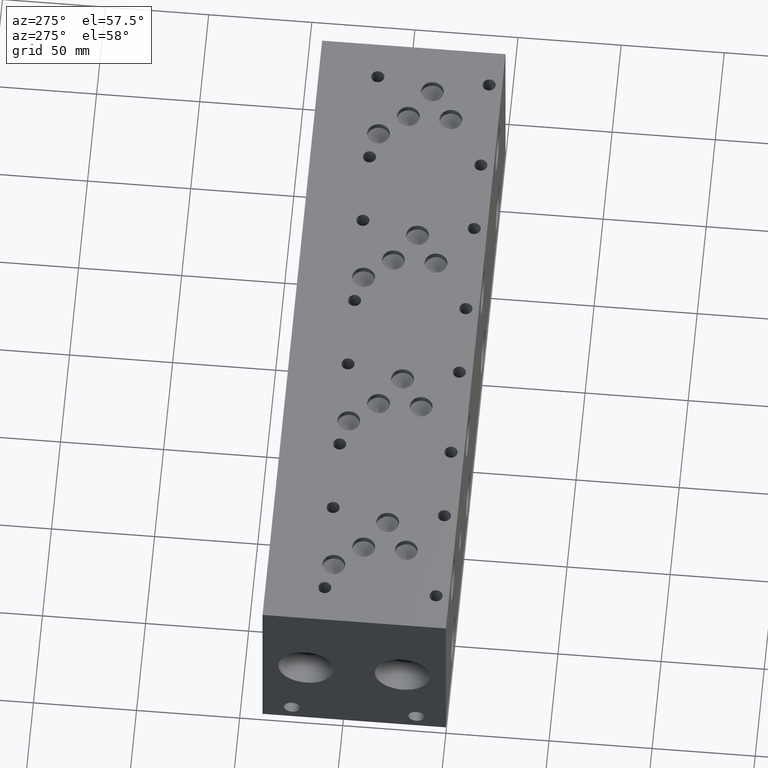
[diagram: clean part render]
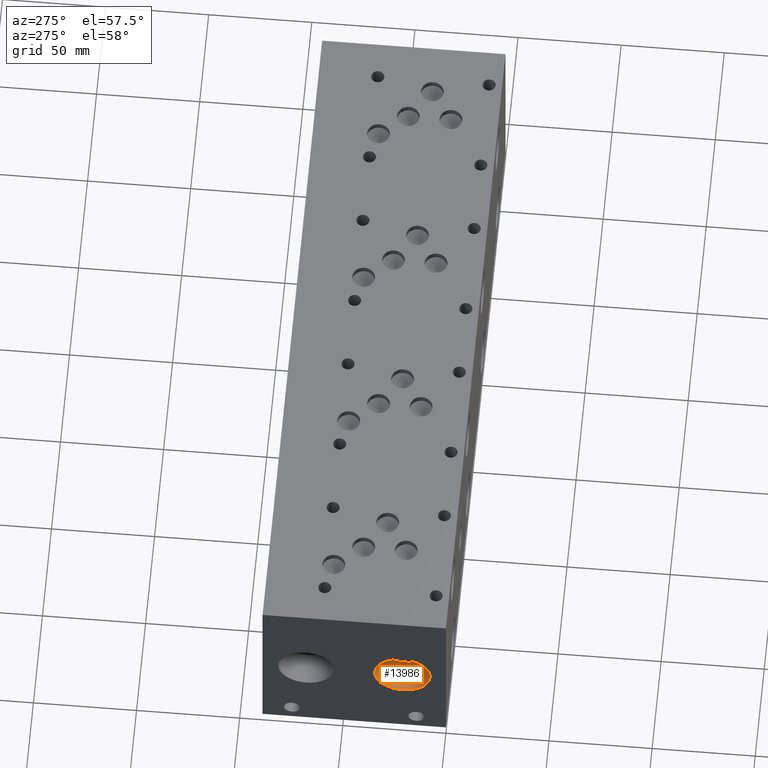
[diagram: same view with one face highlighted and labeled with its STEP entity id]
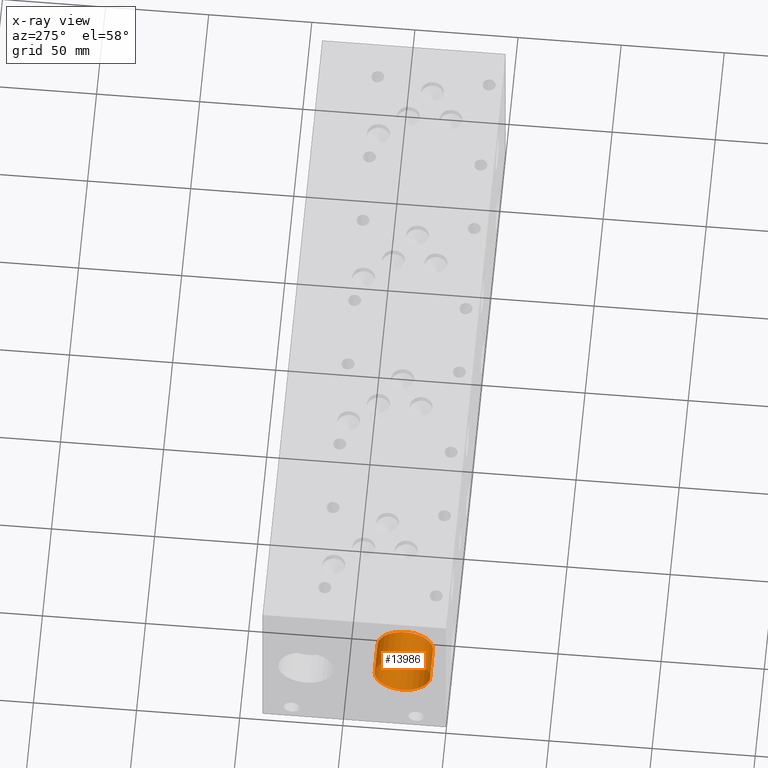
[diagram: x-ray of the same camera — body ghosted, the highlighted face saturated]
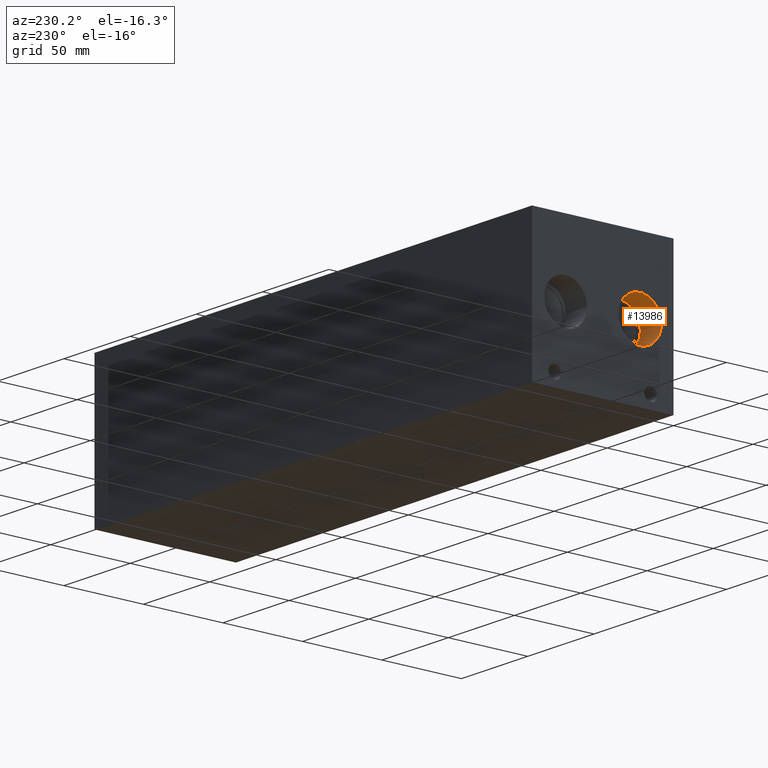
[diagram: same view with one face highlighted and labeled with its STEP entity id]
A machine part, auxiliary view. The second image highlights one B-rep face of the part: STEP entity #13986.
The next image is the same camera in x-ray: the body ghosted, the highlighted face saturated — about 0% of this face is hidden behind the body in this view.
A second angle (auxiliary view) of the same face is appended — the face is thin or edge-on in the first view.
In plain terms, the highlighted cylindrical surface (bore or boss wall) has radius 13.462 mm, axis along (-1, 0, 0).
Its self-contained STEP definition (entity closure, byte-faithful):
#28=CYLINDRICAL_SURFACE('',#14626,13.462);
#347=CIRCLE('',#14498,13.462);
#348=CIRCLE('',#14499,13.462);
#390=CIRCLE('',#14623,13.462);
#391=CIRCLE('',#14624,13.462);
#1686=FACE_OUTER_BOUND('',#2493,.T.);
#2493=EDGE_LOOP('',(#11728,#11729,#11730,#11731,#11732,#11733));
#3874=LINE('',#23524,#5169);
#5169=VECTOR('',#17147,13.462);
#6212=VERTEX_POINT('',#22685);
#6213=VERTEX_POINT('',#22686);
#6367=VERTEX_POINT('',#23517);
#6368=VERTEX_POINT('',#23518);
#7996=EDGE_CURVE('',#6212,#6213,#347,.T.);
#7997=EDGE_CURVE('',#6213,#6212,#348,.T.);
#8235=EDGE_CURVE('',#6367,#6368,#390,.T.);
#8236=EDGE_CURVE('',#6368,#6367,#391,.T.);
#8238=EDGE_CURVE('',#6213,#6368,#3874,.T.);
#11728=ORIENTED_EDGE('',*,*,#7996,.F.);
#11729=ORIENTED_EDGE('',*,*,#7997,.F.);
#11730=ORIENTED_EDGE('',*,*,#8238,.T.);
#11731=ORIENTED_EDGE('',*,*,#8235,.F.);
#11732=ORIENTED_EDGE('',*,*,#8236,.F.);
#11733=ORIENTED_EDGE('',*,*,#8238,.F.);
#13986=ADVANCED_FACE('',(#1686),#28,.F.);
#14498=AXIS2_PLACEMENT_3D('',#22687,#16737,#16738);
#14499=AXIS2_PLACEMENT_3D('',#22688,#16739,#16740);
#14623=AXIS2_PLACEMENT_3D('',#23519,#17139,#17140);
#14624=AXIS2_PLACEMENT_3D('',#23520,#17141,#17142);
#14626=AXIS2_PLACEMENT_3D('',#23523,#17145,#17146);
#16737=DIRECTION('center_axis',(1.,0.,0.));
#16738=DIRECTION('ref_axis',(0.,1.,0.));
#16739=DIRECTION('center_axis',(1.,0.,0.));
#16740=DIRECTION('ref_axis',(0.,1.,0.));
#17139=DIRECTION('center_axis',(-1.,0.,0.));
#17140=DIRECTION('ref_axis',(0.,1.,0.));
#17141=DIRECTION('center_axis',(-1.,0.,0.));
#17142=DIRECTION('ref_axis',(0.,1.,0.));
#17145=DIRECTION('center_axis',(-1.,0.,0.));
#17146=DIRECTION('ref_axis',(0.,1.,0.));
#17147=DIRECTION('',(1.,0.,0.));
#22685=CARTESIAN_POINT('',(0.,34.544,44.45));
#22686=CARTESIAN_POINT('',(1.11022302462516E-15,7.62,44.45));
#22687=CARTESIAN_POINT('Origin',(0.,21.082,44.45));
#22688=CARTESIAN_POINT('Origin',(0.,21.082,44.45));
#23517=CARTESIAN_POINT('',(15.8496,34.544,44.45));
#23518=CARTESIAN_POINT('',(15.8496,7.62,44.45));
#23519=CARTESIAN_POINT('Origin',(15.8496,21.082,44.45));
#23520=CARTESIAN_POINT('Origin',(15.8496,21.082,44.45));
#23523=CARTESIAN_POINT('Origin',(7.9248,21.082,44.45));
#23524=CARTESIAN_POINT('',(7.9248,7.62,44.45));